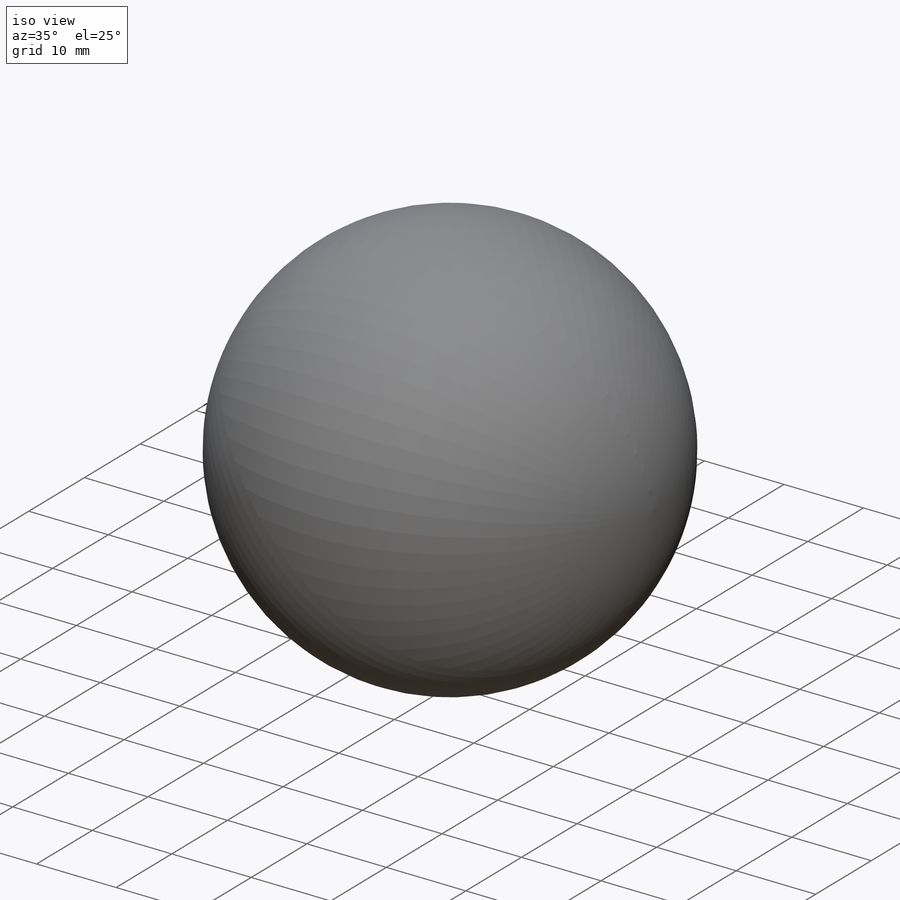
[diagram: iso view]
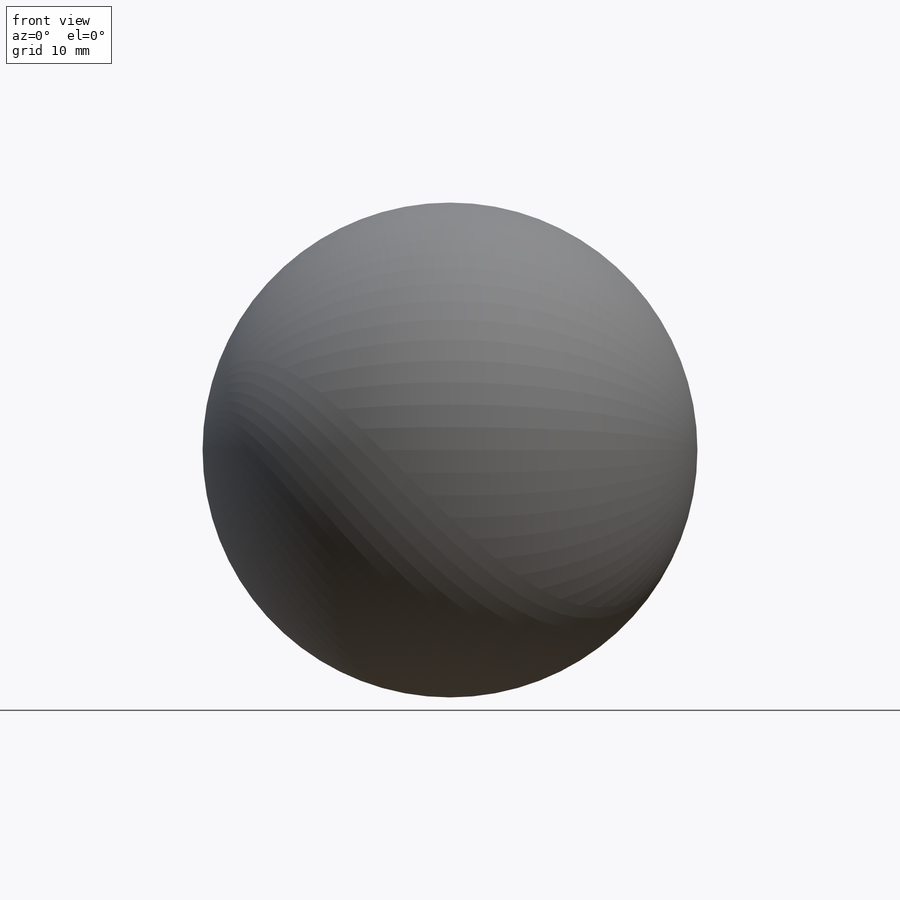
[diagram: front view]
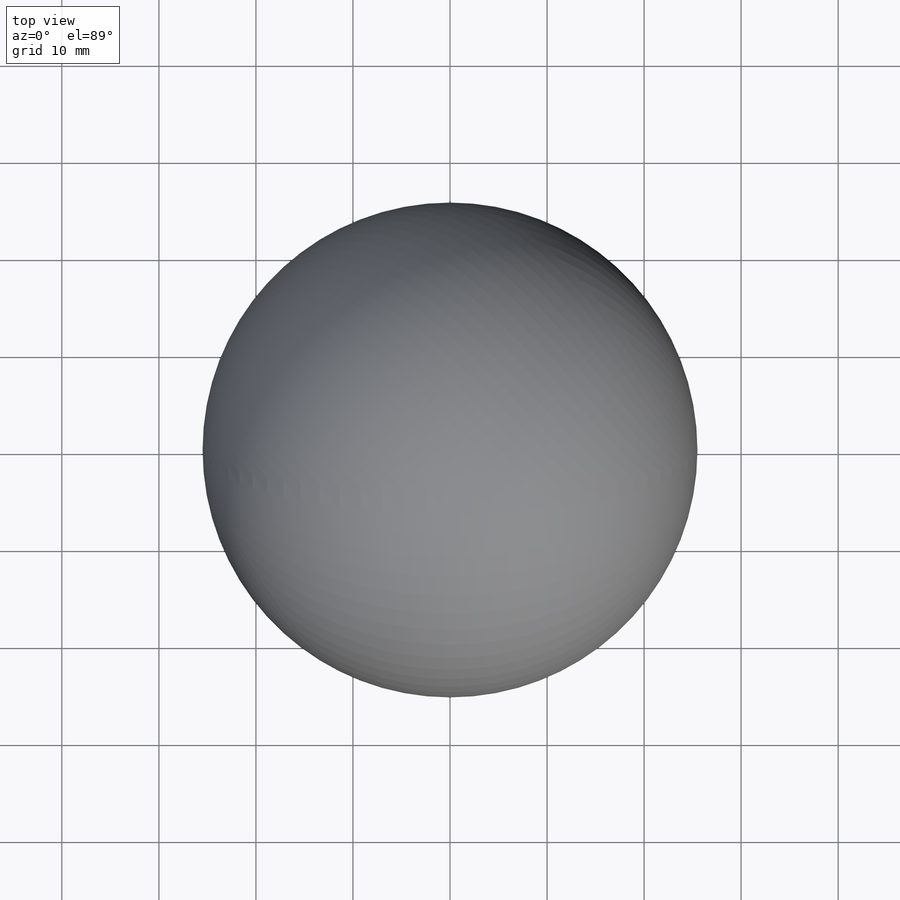
[diagram: top view]
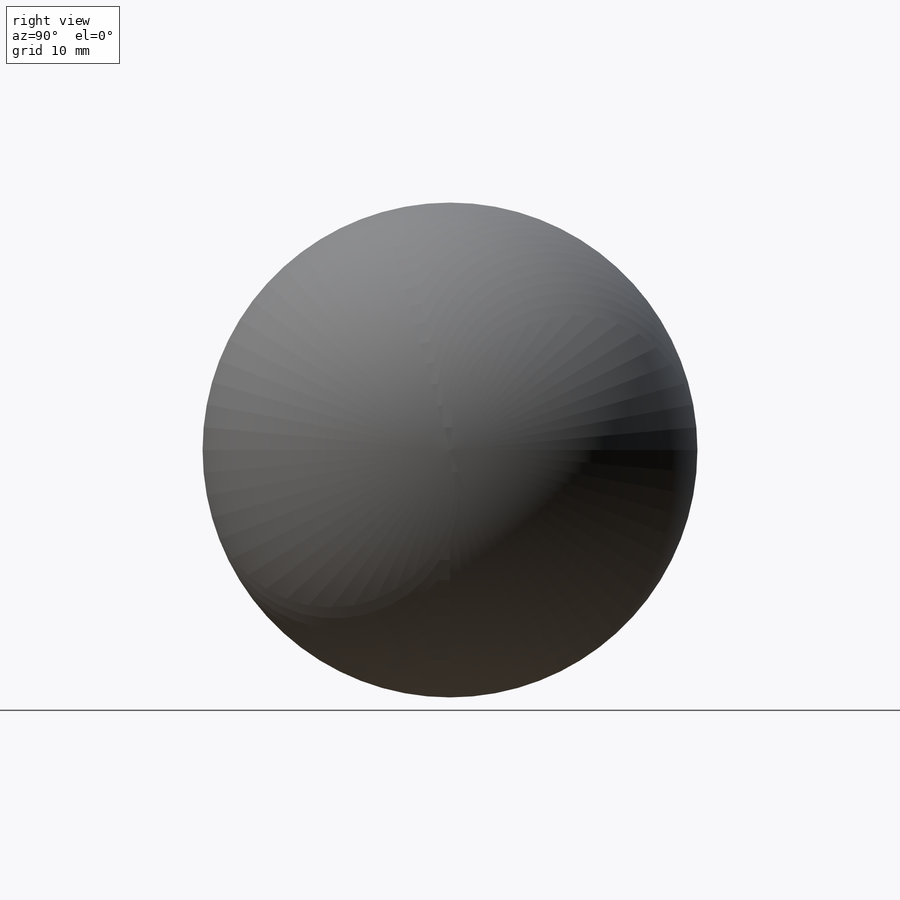
[diagram: right view]
SOLIDWORKS PART (.sldprt)
format: sldprt  version: not decoded by parser v0  size: 421,888 bytes
history: native  units: mm
features: plane x5, mirror x3, sketch x2, revolve x2, fillet x2, material x1 (+9 scaffold rows collapsed)
feature tree (24):
  scaffold x9  (default folders/planes/origin — collapsed)
  material  "Glas"
  plane  "Ebene vorne"
  plane  "Ebene oben"
  plane  "Ebene rechts"
  sketch  "Skizze1"  dims[c1.D6=~35.789056mm c1.D7=~26.623662mm c1.D8=28.0mm c1.D9=28.0mm c1.D1=10.0mm c1.D2=50.0mm c1.D3=0.5mm c1.D4=2.0mm c1.D5=2.0mm c2.D6=76.0deg c2.D7=76.0deg]
  revolve  "Rotation1"  Angle=360deg
  revolve  "Rotation3"  [1 undecoded]
  sketch  "Skizze1<3>"  dims[D1=360.0deg]
  fillet  "Verrundung3"  Radius=7.5mm
  fillet  "Verrundung5"  Radius=3mm
  mirror  "Spiegeln3"
  plane  "Ebene4"
  mirror  "Spiegeln4"
  plane  "Ebene5"
  mirror  "Spiegeln5"
decode coverage: 5 of 9 modeling features carry decoded parameters
note: ~ marks probable driven/reference dimensions
note: 1 parameter value undecoded
note: suppression state not decoded; provenance and decode notes live in map.json
